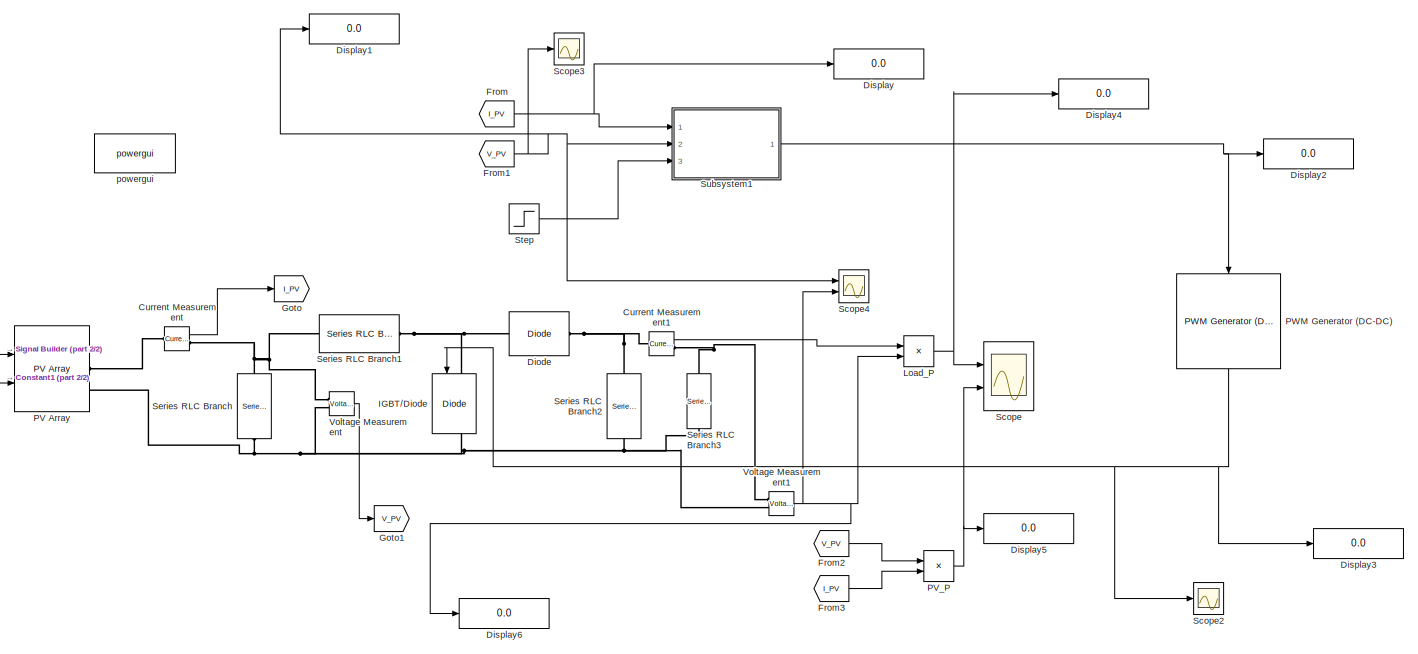
[diagram: root canvas - part 1/2, most of the canvas]
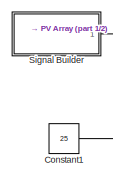
[diagram: root canvas - part 2/2, middle left region]
MODEL slx_4a689c1cc819
KIND model
CONFIG AbsTol = auto
CONFIG EnableMultiTasking = off
CONFIG FixedStep = auto
CONFIG MaxStep = auto
CONFIG MinStep = auto
CONFIG RelTol = 1e-3
CONFIG SampleTimeConstraint = Unconstrained
CONFIG SolverName = VariableStepAuto
CONFIG StartTime = 0.0
CONFIG StopTime = 1.5
BLOCK [Constant] Constant1
  Value = 25
BLOCK [Reference] Current Measurement  REF=spsCurrentMeasurementLib/Current Measurement
  Ports = [0, 1, 0, 0, 0, 1, 1]
  SourceBlock = spsCurrentMeasurementLib/Current Measurement
  SourceProductBaseCode = PS
  SourceType = Current Measurement
  UserDataPersistent = on
BLOCK [Reference] Current Measurement1  REF=spsCurrentMeasurementLib/Current Measurement
  Ports = [0, 1, 0, 0, 0, 1, 1]
  SourceBlock = spsCurrentMeasurementLib/Current Measurement
  SourceProductBaseCode = PS
  SourceType = Current Measurement
  UserDataPersistent = on
BLOCK [Reference] Diode  REF=spsDiodeLib/Diode
  Ports = [0, 0, 0, 0, 0, 1, 1]
  SourceBlock = spsDiodeLib/Diode
  SourceProductBaseCode = PS
  SourceType = Diode
BLOCK [Display] Display
  Decimation = 1
  Ports = [1]
BLOCK [Display] Display1
  Decimation = 1
  Ports = [1]
BLOCK [Display] Display2
  Decimation = 1
  Ports = [1]
BLOCK [Display] Display3
  Decimation = 1
  Ports = [1]
BLOCK [Display] Display4
  Decimation = 1
  Ports = [1]
BLOCK [Display] Display5
  Decimation = 1
  Ports = [1]
BLOCK [Display] Display6
  Decimation = 1
  Ports = [1]
BLOCK [From] From
  GotoTag = I_PV
BLOCK [From] From1
  GotoTag = V_PV
BLOCK [From] From2
  GotoTag = V_PV
BLOCK [From] From3
  GotoTag = I_PV
BLOCK [Goto] Goto
  GotoTag = I_PV
BLOCK [Goto] Goto1
  GotoTag = V_PV
BLOCK [Reference] IGBT//Diode  REF=spsIGBTDiodeLib/IGBT//Diode
  NameLocation = left
  Ports = [1, 1, 0, 0, 0, 1, 1]
  SourceBlock = spsIGBTDiodeLib/IGBT//Diode
  SourceProductBaseCode = PS
  SourceType = IGBT/Diode
BLOCK [Product] Load_P
  Ports = [2, 1]
BLOCK [Reference] PV Array  REF=spsPVArrayLib/PV Array
  Ports = [2, 1, 0, 0, 0, 0, 2]
  SourceBlock = spsPVArrayLib/PV Array
  SourceProductBaseCode = PS
  SourceType = PV array
BLOCK [Product] PV_P
  Ports = [2, 1]
BLOCK [Reference] PWM Generator (DC-DC)  REF=spsPWMGeneratorDCDCLib/PWM Generator
(DC-DC)
  NameLocation = left
  Ports = [1, 1]
  SourceBlock = spsPWMGeneratorDCDCLib/PWM Generator\n(DC-DC)
  SourceProductBaseCode = PS
  SourceType = PWM Generator (DC-DC)
BLOCK [Scope] Scope
  Floating = off
  NumInputPorts = 2
  Ports = [2]
  ScopeSpecificationString = Simulink.scopes.TimeScopeBlockCfg('CurrentConfiguration', extmgr.ConfigurationSet(extmgr.Configuration('Core','General UI',true),extmgr.Configuration('Core','Source UI',true),extmgr.Configuration('Sources','WiredSimulink',true),extmgr.Configuration('Visuals','Time Domain',true,'SerializedDisplays',{struct('MinYLimReal','-15.20333','MaxYLimReal','136.82994','YLabelReal','','MinYLimMag','0.00000','M...<+2094ch>
BLOCK [Scope] Scope2
  Floating = off
  NumInputPorts = 1
  Ports = [1]
  ScopeSpecificationString = Simulink.scopes.TimeScopeBlockCfg('CurrentConfiguration', extmgr.ConfigurationSet(extmgr.Configuration('Core','General UI',true),extmgr.Configuration('Core','Source UI',true),extmgr.Configuration('Sources','WiredSimulink',true,'DataLoggingVariableName','ScopeData1'),extmgr.Configuration('Visuals','Time Domain',true,'SerializedDisplays',{struct('MinYLimReal','-0.125','MaxYLimReal','1.125','YLabelRe...<+1412ch>
BLOCK [Scope] Scope3
  Floating = off
  NumInputPorts = 1
  Ports = [1]
  ScopeSpecificationString = Simulink.scopes.TimeScopeBlockCfg('CurrentConfiguration', extmgr.ConfigurationSet(extmgr.Configuration('Core','General UI',true),extmgr.Configuration('Core','Source UI',true),extmgr.Configuration('Sources','WiredSimulink',true,'DataLoggingVariableName','ScopeData3'),extmgr.Configuration('Visuals','Time Domain',true,'SerializedDisplays',{struct('MinYLimReal','-65.14077','MaxYLimReal','729.4265','YL...<+1384ch>
BLOCK [Scope] Scope4
  Floating = off
  NumInputPorts = 2
  Ports = [2]
  ScopeSpecificationString = Simulink.scopes.TimeScopeBlockCfg('CurrentConfiguration', extmgr.ConfigurationSet(extmgr.Configuration('Core','General UI',true),extmgr.Configuration('Core','Source UI',true),extmgr.Configuration('Sources','WiredSimulink',true,'DataLoggingVariableName','ScopeData4'),extmgr.Configuration('Visuals','Time Domain',true,'SerializedDisplays',{struct('MinYLimReal','-65.14077','MaxYLimReal','729.4265','YL...<+2109ch>
BLOCK [Reference] Series RLC Branch  REF=spsSeriesRLCBranchLib/Series RLC Branch
  NameLocation = left
  Ports = [0, 0, 0, 0, 0, 1, 1]
  SourceBlock = spsSeriesRLCBranchLib/Series RLC Branch
  SourceProductBaseCode = PS
  SourceType = Series RLC Branch
BLOCK [Reference] Series RLC Branch1  REF=spsSeriesRLCBranchLib/Series RLC Branch
  Ports = [0, 0, 0, 0, 0, 1, 1]
  SourceBlock = spsSeriesRLCBranchLib/Series RLC Branch
  SourceProductBaseCode = PS
  SourceType = Series RLC Branch
BLOCK [Reference] Series RLC Branch2  REF=spsSeriesRLCBranchLib/Series RLC Branch
  NameLocation = left
  Ports = [0, 0, 0, 0, 0, 1, 1]
  SourceBlock = spsSeriesRLCBranchLib/Series RLC Branch
  SourceProductBaseCode = PS
  SourceType = Series RLC Branch
BLOCK [Reference] Series RLC Branch3  REF=spsSeriesRLCBranchLib/Series RLC Branch
  NameLocation = left
  Ports = [0, 0, 0, 0, 0, 1, 1]
  SourceBlock = spsSeriesRLCBranchLib/Series RLC Branch
  SourceProductBaseCode = PS
  SourceType = Series RLC Branch
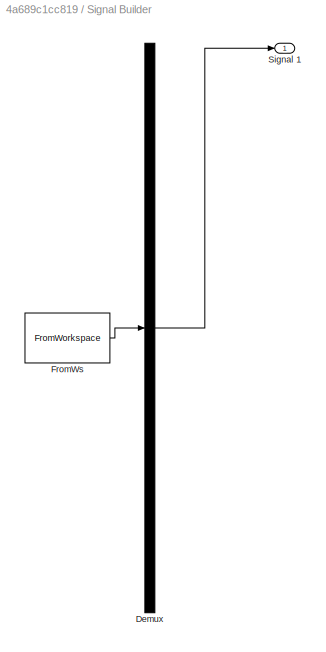
BLOCK [SubSystem] Signal Builder
  ClipboardFcn = sigbuilder_block('clipboard');
  CloseFcn = sigbuilder_block('close');
  ContinueFcn = sigbuilder_block('continue');
  CopyFcn = sigbuilder_block('copy');
  DeleteFcn = sigbuilder_block('delete');
  LoadFcn = sigbuilder_block('load');
  MaskHideContents = on
  ModelCloseFcn = sigbuilder_block('modelClose');
  NameChangeFcn = sigbuilder_block('namechange');
  OpenFcn = sigbuilder_block('open',[425.4 172.2 550.8 400.2 ]);
  PauseFcn = sigbuilder_block('pause');
  Ports = [0, 1]
  PreSaveFcn = sigbuilder_block('preSave');
  RequestExecContextInheritance = off
  StartFcn = sigbuilder_block('start');
  StopFcn = sigbuilder_block('stop');
  Tag = STV Subsys
BLOCK [Demux] Signal Builder/Demux
  DisplayOption = none
  Outputs = 1
  Ports = [1, 1]
  Tag = STV Demux
BLOCK [FromWorkspace] Signal Builder/FromWs
  Tag = STV FromWs
  VariableName = tuvar
BLOCK [Outport] Signal Builder/Signal 1
  Tag = STV Outport
BLOCK [Step] Step
  SampleTime = 0
  Time = 0.2
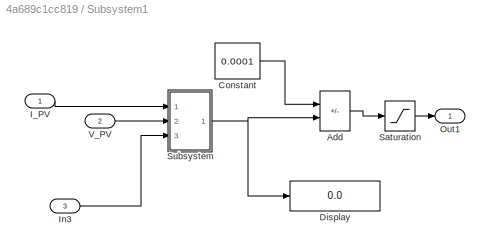
BLOCK [SubSystem] Subsystem1
  Ports = [3, 1]
  RequestExecContextInheritance = off
BLOCK [Sum] Subsystem1/Add
  IconShape = rectangular
  Inputs = +-
  Ports = [2, 1]
BLOCK [Constant] Subsystem1/Constant
  Value = 0.0001
BLOCK [Display] Subsystem1/Display
  Decimation = 1
  Ports = [1]
BLOCK [Inport] Subsystem1/I_PV
BLOCK [Inport] Subsystem1/In3
  Port = 3
BLOCK [Outport] Subsystem1/Out1
BLOCK [Saturate] Subsystem1/Saturation
  LowerLimit = 0
  UpperLimit = 1
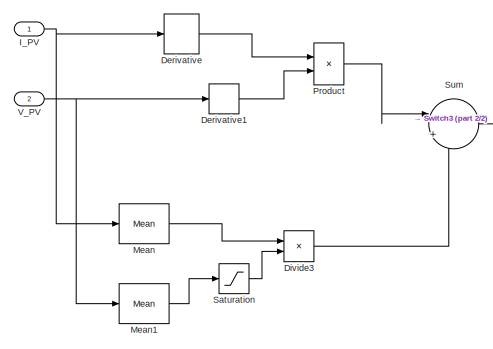
[diagram: Subsystem1/Subsystem - part 1/2, left side, full height]
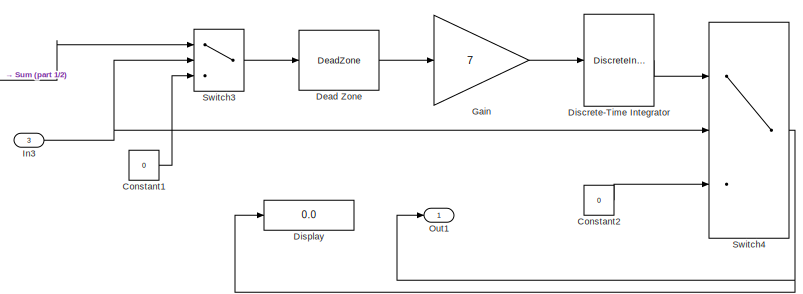
[diagram: Subsystem1/Subsystem - part 2/2, right side, full height]
BLOCK [SubSystem] Subsystem1/Subsystem
  Ports = [3, 1]
  RequestExecContextInheritance = off
BLOCK [Constant] Subsystem1/Subsystem/Constant1
  Value = 0
BLOCK [Constant] Subsystem1/Subsystem/Constant2
  Value = 0
BLOCK [DeadZone] Subsystem1/Subsystem/Dead Zone
BLOCK [Derivative] Subsystem1/Subsystem/Derivative
BLOCK [Derivative] Subsystem1/Subsystem/Derivative1
BLOCK [DiscreteIntegrator] Subsystem1/Subsystem/Discrete-Time Integrator
  ICPrevOutput = DiscIntNeverNeededParam
  ICPrevScaledInput = DiscIntNeverNeededParam
  InitialConditionSetting = Auto
  LimitOutput = on
  LowerSaturationLimit = -1
  Ports = [1, 1]
  SampleTime = 1e-6
  UpperSaturationLimit = 1
BLOCK [Display] Subsystem1/Subsystem/Display
  Decimation = 1
  Ports = [1]
BLOCK [Product] Subsystem1/Subsystem/Divide3
  Inputs = */
  Ports = [2, 1]
BLOCK [Gain] Subsystem1/Subsystem/Gain
  Gain = 7
BLOCK [Inport] Subsystem1/Subsystem/I_PV
BLOCK [Inport] Subsystem1/Subsystem/In3
  Port = 3
BLOCK [Reference] Subsystem1/Subsystem/Mean  REF=spsMeanLib/Mean
  Ports = [1, 1]
  SourceBlock = spsMeanLib/Mean
  SourceProductBaseCode = PS
  SourceType = Mean
BLOCK [Reference] Subsystem1/Subsystem/Mean1  REF=spsMeanLib/Mean
  Ports = [1, 1]
  SourceBlock = spsMeanLib/Mean
  SourceProductBaseCode = PS
  SourceType = Mean
BLOCK [Outport] Subsystem1/Subsystem/Out1
BLOCK [Product] Subsystem1/Subsystem/Product
  Inputs = */
  Ports = [2, 1]
BLOCK [Saturate] Subsystem1/Subsystem/Saturation
  LowerLimit = eps
  UpperLimit = inf
BLOCK [Sum] Subsystem1/Subsystem/Sum
  Inputs = |++
  Ports = [2, 1]
BLOCK [Switch] Subsystem1/Subsystem/Switch3
  Criteria = u2 > Threshold
  InputSameDT = off
  SaturateOnIntegerOverflow = off
BLOCK [Switch] Subsystem1/Subsystem/Switch4
  Criteria = u2 > Threshold
  InputSameDT = off
  SaturateOnIntegerOverflow = off
BLOCK [Inport] Subsystem1/Subsystem/V_PV
  Port = 2
BLOCK [Inport] Subsystem1/V_PV
  Port = 2
BLOCK [Reference] Voltage Measurement  REF=spsVoltageMeasurementLib/Voltage Measurement
  Ports = [0, 1, 0, 0, 0, 2]
  SourceBlock = spsVoltageMeasurementLib/Voltage Measurement
  SourceProductBaseCode = PS
  SourceType = Voltage Measurement
  UserDataPersistent = on
BLOCK [Reference] Voltage Measurement1  REF=spsVoltageMeasurementLib/Voltage Measurement
  Ports = [0, 1, 0, 0, 0, 2]
  SourceBlock = spsVoltageMeasurementLib/Voltage Measurement
  SourceProductBaseCode = PS
  SourceType = Voltage Measurement
  UserDataPersistent = on
BLOCK [Reference] powergui  REF=spspowerguiLib/powergui
  Ports = []
  Priority = 1
  SourceBlock = spspowerguiLib/powergui
  SourceProductBaseCode = PS
  SourceType = PSB option menu block
LINE Constant1:1 -> PV Array:2
LINE Current Measurement1:1 -> Load_P:1
LINE Current Measurement:1 -> Goto:1
NET From1:1 -> Display1:1, Scope3:1, Scope4:1, Subsystem1:2
LINE From2:1 -> PV_P:1
LINE From3:1 -> PV_P:2
NET From:1 -> Display:1, Subsystem1:1
NET Load_P:1 -> Display4:1, Scope:1
NET PV_P:1 -> Display5:1, Scope:2
NET PWM Generator (DC-DC):1 -> Display3:1, IGBT//Diode:1, Scope2:1
LINE Signal Builder:1 -> PV Array:1
LINE Step:1 -> Subsystem1:3
LINE Subsystem1/Add:1 -> Subsystem1/Saturation:1
LINE Subsystem1/Constant:1 -> Subsystem1/Add:1
LINE Subsystem1/I_PV:1 -> Subsystem1/Subsystem:1
LINE Subsystem1/In3:1 -> Subsystem1/Subsystem:3
LINE Subsystem1/Saturation:1 -> Subsystem1/Out1:1
LINE Subsystem1/Subsystem/Constant1:1 -> Subsystem1/Subsystem/Switch3:3
LINE Subsystem1/Subsystem/Constant2:1 -> Subsystem1/Subsystem/Switch4:3
LINE Subsystem1/Subsystem/Dead Zone:1 -> Subsystem1/Subsystem/Gain:1
LINE Subsystem1/Subsystem/Derivative1:1 -> Subsystem1/Subsystem/Product:2
LINE Subsystem1/Subsystem/Derivative:1 -> Subsystem1/Subsystem/Product:1
LINE Subsystem1/Subsystem/Discrete-Time Integrator:1 -> Subsystem1/Subsystem/Switch4:1
LINE Subsystem1/Subsystem/Divide3:1 -> Subsystem1/Subsystem/Sum:2
LINE Subsystem1/Subsystem/Gain:1 -> Subsystem1/Subsystem/Discrete-Time Integrator:1
NET Subsystem1/Subsystem/I_PV:1 -> Subsystem1/Subsystem/Derivative:1, Subsystem1/Subsystem/Mean:1
NET Subsystem1/Subsystem/In3:1 -> Subsystem1/Subsystem/Switch3:2, Subsystem1/Subsystem/Switch4:2
LINE Subsystem1/Subsystem/Mean1:1 -> Subsystem1/Subsystem/Saturation:1
LINE Subsystem1/Subsystem/Mean:1 -> Subsystem1/Subsystem/Divide3:1
LINE Subsystem1/Subsystem/Product:1 -> Subsystem1/Subsystem/Sum:1
LINE Subsystem1/Subsystem/Saturation:1 -> Subsystem1/Subsystem/Divide3:2
LINE Subsystem1/Subsystem/Sum:1 -> Subsystem1/Subsystem/Switch3:1
LINE Subsystem1/Subsystem/Switch3:1 -> Subsystem1/Subsystem/Dead Zone:1
NET Subsystem1/Subsystem/Switch4:1 -> Subsystem1/Subsystem/Display:1, Subsystem1/Subsystem/Out1:1
NET Subsystem1/Subsystem/V_PV:1 -> Subsystem1/Subsystem/Derivative1:1, Subsystem1/Subsystem/Mean1:1
NET Subsystem1/Subsystem:1 -> Subsystem1/Add:2, Subsystem1/Display:1
LINE Subsystem1/V_PV:1 -> Subsystem1/Subsystem:2
NET Subsystem1:1 -> Display2:1, PWM Generator (DC-DC):1
NET Voltage Measurement1:1 -> Display6:1, Load_P:2, Scope4:2
LINE Voltage Measurement:1 -> Goto1:1
PNET net1: Current Measurement1:LConn1 -- Diode:RConn1 -- Series RLC Branch2:LConn1
PNET net2: Current Measurement1:RConn1 -- Series RLC Branch3:LConn1 -- Voltage Measurement1:LConn1
PLINE Current Measurement:LConn1 -- PV Array:RConn1
PNET net3: Current Measurement:RConn1 -- Series RLC Branch1:LConn1 -- Series RLC Branch:LConn1 -- Voltage Measurement:LConn1
PNET net4: Diode:LConn1 -- IGBT//Diode:LConn1 -- Series RLC Branch1:RConn1
PNET net5: IGBT//Diode:RConn1 -- PV Array:RConn2 -- Series RLC Branch2:RConn1 -- Series RLC Branch3:RConn1 -- Series RLC Branch:RConn1 -- Voltage Measurement1:LConn2 -- Voltage Measurement:LConn2
note: NET lines group one-source signal fan-out (src -> all destinations, sorted); 1:1 wires keep LINE; PNET lines group multi-terminal physical nets as a canonical sorted terminal list (undirected conserving connections); 2-terminal nets keep the pairwise PLINE form
